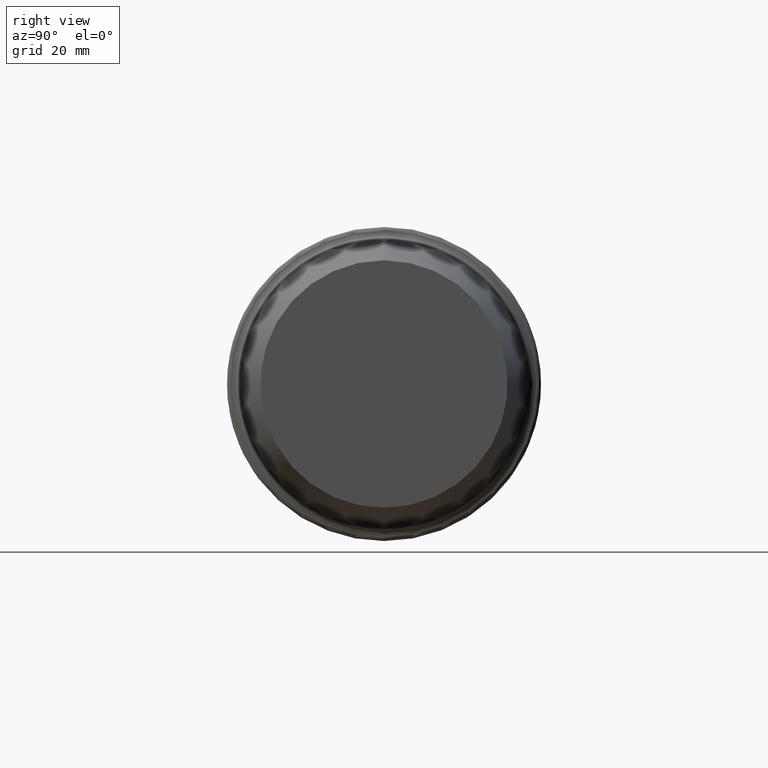
[diagram: clean part render]
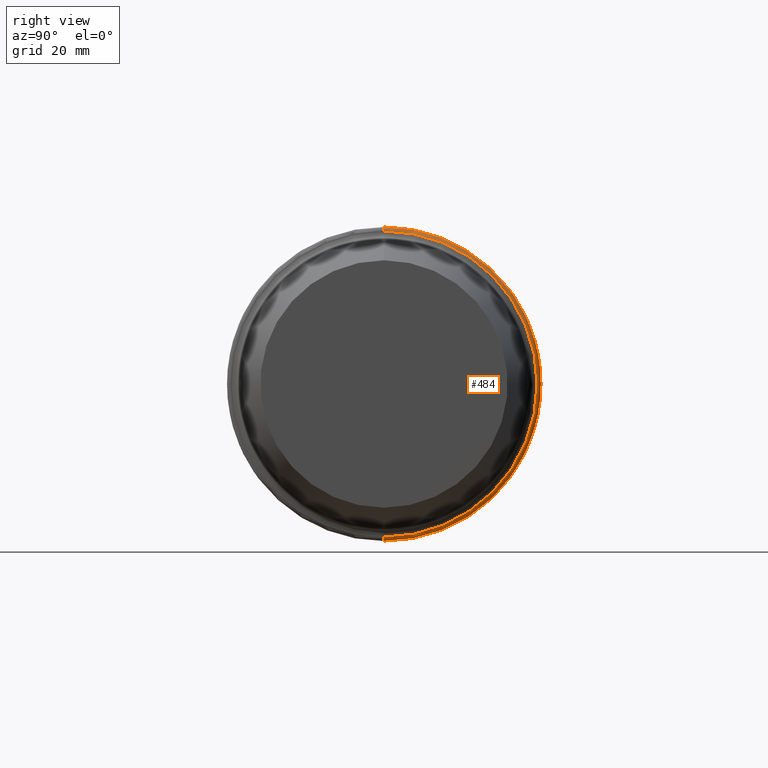
[diagram: same view with one face highlighted and labeled with its STEP entity id]
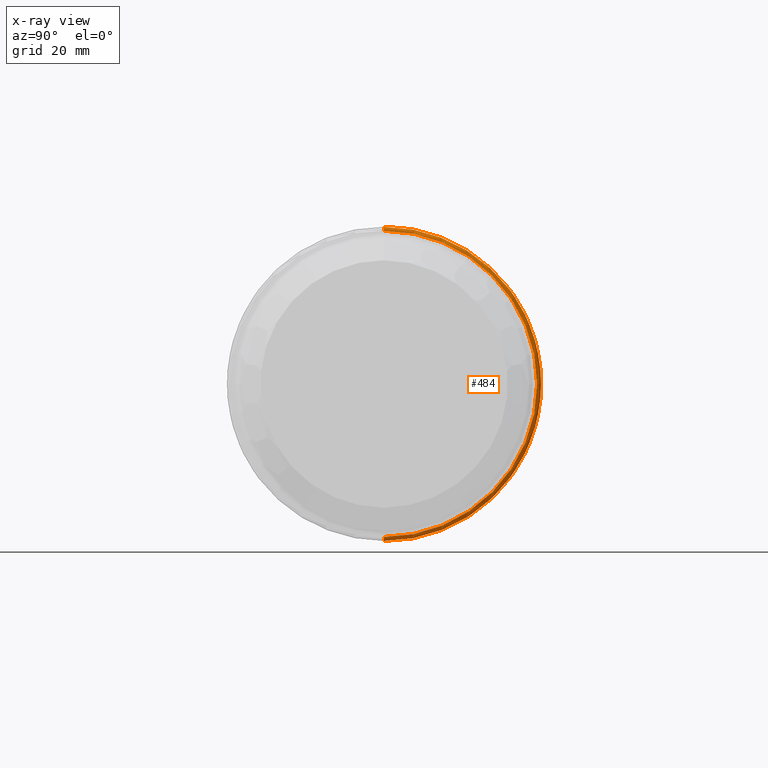
[diagram: x-ray of the same camera — body ghosted, the highlighted face saturated]
A machine part, right view. The second image highlights one B-rep face of the part: STEP entity #484.
The next image is the same camera in x-ray: the body ghosted, the highlighted face saturated — about 0% of this face is hidden behind the body in this view.
In plain terms, the highlighted toroidal blend (fillet) surface has major radius 38.9925 mm and minor (blend) radius 1 mm.
Its self-contained STEP definition (entity closure, byte-faithful):
#33 = EDGE_CURVE ( 'NONE', #74, #287, #507, .T. ) ;
#45 = VERTEX_POINT ( 'NONE', #223 ) ;
#57 = DIRECTION ( 'NONE',  ( 0.000000000000000000, 0.000000000000000000, -1.000000000000000000 ) ) ;
#66 = CARTESIAN_POINT ( 'NONE',  ( 28.99999997311141797, 0.000000000000000000, 0.000000000000000000 ) ) ;
#74 = VERTEX_POINT ( 'NONE', #385 ) ;
#81 = CARTESIAN_POINT ( 'NONE',  ( 28.99999997311141797, 0.000000000000000000, 0.000000000000000000 ) ) ;
#86 = ORIENTED_EDGE ( 'NONE', *, *, #118, .T. ) ;
#95 = CARTESIAN_POINT ( 'NONE',  ( 29.99999997209141611, 0.000000000000000000, 0.000000000000000000 ) ) ;
#100 = CARTESIAN_POINT ( 'NONE',  ( 28.99999997311141797, 4.897668707065322260E-15, -39.99249996386929951 ) ) ;
#118 = EDGE_CURVE ( 'NONE', #460, #74, #129, .T. ) ;
#125 = EDGE_CURVE ( 'NONE', #460, #45, #403, .T. ) ;
#129 = CIRCLE ( 'NONE', #362, 38.99249996488934045 ) ;
#131 = AXIS2_PLACEMENT_3D ( 'NONE', #228, #349, #57 ) ;
#155 = CIRCLE ( 'NONE', #198, 39.99249996386929951 ) ;
#180 = EDGE_CURVE ( 'NONE', #45, #287, #155, .T. ) ;
#184 = AXIS2_PLACEMENT_3D ( 'NONE', #66, #348, #189 ) ;
#189 = DIRECTION ( 'NONE',  ( 0.000000000000000000, 0.000000000000000000, 1.000000000000000000 ) ) ;
#198 = AXIS2_PLACEMENT_3D ( 'NONE', #81, #289, #400 ) ;
#206 = AXIS2_PLACEMENT_3D ( 'NONE', #506, #296, #464 ) ;
#223 = CARTESIAN_POINT ( 'NONE',  ( 28.99999997311141797, 0.000000000000000000, 39.99249996386929951 ) ) ;
#226 = DIRECTION ( 'NONE',  ( -1.000000000000000000, 0.000000000000000000, 0.000000000000000000 ) ) ;
#228 = CARTESIAN_POINT ( 'NONE',  ( 28.99999997311141797, 0.000000000000000000, 38.99249996488934045 ) ) ;
#259 = DIRECTION ( 'NONE',  ( 0.000000000000000000, 0.000000000000000000, 1.000000000000000000 ) ) ;
#262 = CARTESIAN_POINT ( 'NONE',  ( 29.99999997209141611, 0.000000000000000000, 38.99249996488934045 ) ) ;
#273 = ORIENTED_EDGE ( 'NONE', *, *, #180, .F. ) ;
#278 = ORIENTED_EDGE ( 'NONE', *, *, #33, .T. ) ;
#287 = VERTEX_POINT ( 'NONE', #100 ) ;
#289 = DIRECTION ( 'NONE',  ( -1.000000000000000000, 0.000000000000000000, 0.000000000000000000 ) ) ;
#296 = DIRECTION ( 'NONE',  ( 0.000000000000000000, 1.000000000000000000, 1.224646799147353947E-16 ) ) ;
#348 = DIRECTION ( 'NONE',  ( -1.000000000000000000, 0.000000000000000000, 0.000000000000000000 ) ) ;
#349 = DIRECTION ( 'NONE',  ( 0.000000000000000000, -1.000000000000000000, 0.000000000000000000 ) ) ;
#361 = ORIENTED_EDGE ( 'NONE', *, *, #125, .F. ) ;
#362 = AXIS2_PLACEMENT_3D ( 'NONE', #95, #226, #259 ) ;
#385 = CARTESIAN_POINT ( 'NONE',  ( 29.99999997209141611, 4.836436367170416693E-15, -38.99249996488934045 ) ) ;
#400 = DIRECTION ( 'NONE',  ( 0.000000000000000000, 0.000000000000000000, 1.000000000000000000 ) ) ;
#403 = CIRCLE ( 'NONE', #131, 0.9999999989799973621 ) ;
#405 = EDGE_LOOP ( 'NONE', ( #86, #278, #273, #361 ) ) ;
#424 = TOROIDAL_SURFACE ( 'NONE', #184, 38.99249996488934045, 0.9999999989799999156 ) ;
#436 = FACE_OUTER_BOUND ( 'NONE', #405, .T. ) ;
#460 = VERTEX_POINT ( 'NONE', #262 ) ;
#464 = DIRECTION ( 'NONE',  ( 0.000000000000000000, -1.224646799147358384E-16, 1.000000000000000000 ) ) ;
#484 = ADVANCED_FACE ( 'NONE', ( #436 ), #424, .T. ) ;
#506 = CARTESIAN_POINT ( 'NONE',  ( 28.99999997311141797, 4.775204027275495348E-15, -38.99249996488934045 ) ) ;
#507 = CIRCLE ( 'NONE', #206, 0.9999999989799973621 ) ;